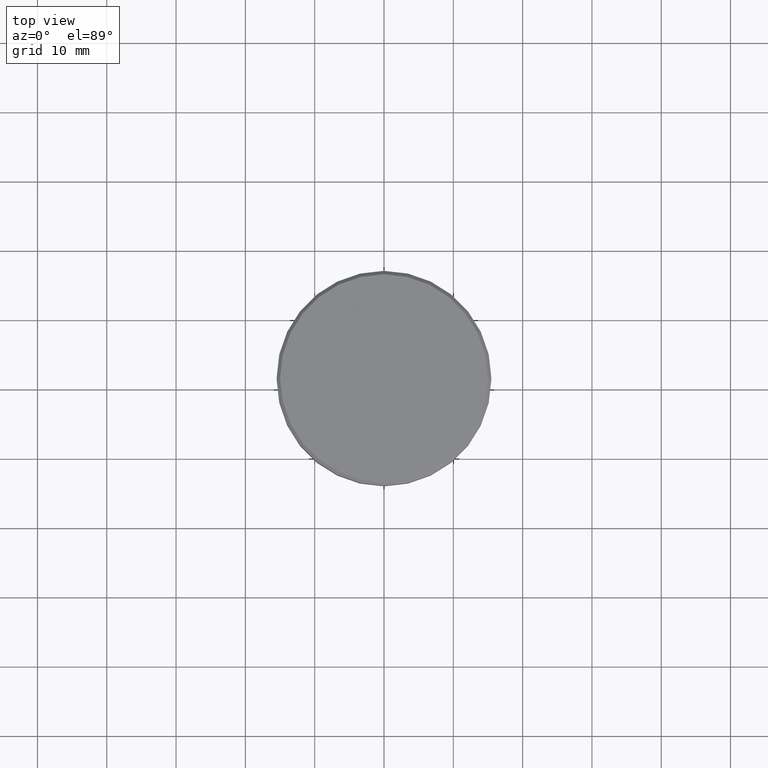
[diagram: clean part render]
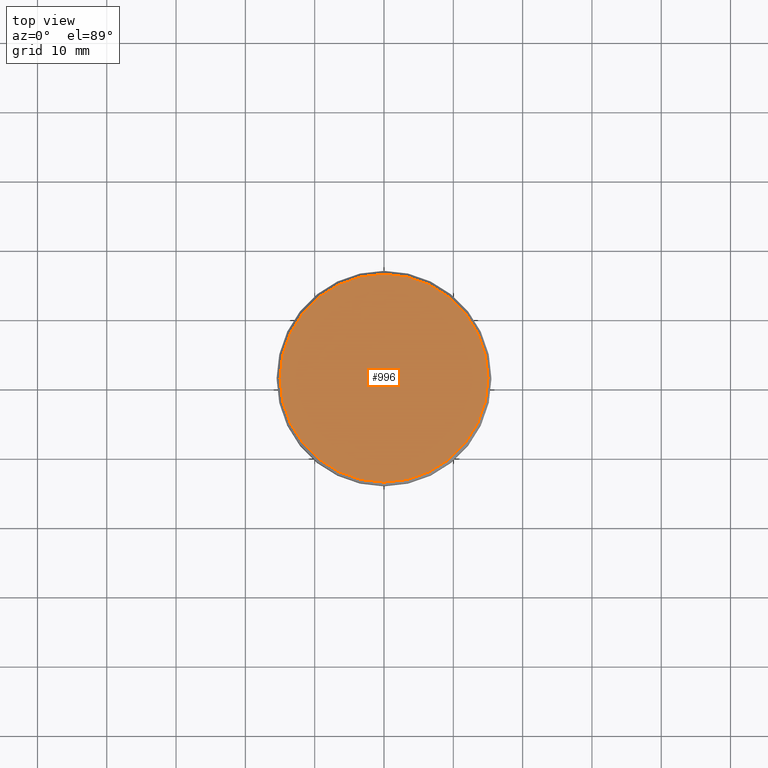
[diagram: same view with one face highlighted and labeled with its STEP entity id]
A machine part, top view. The second image highlights one B-rep face of the part: STEP entity #996.
In plain terms, the highlighted planar face has unit normal (0, -0, 1).
Its self-contained STEP definition (entity closure, byte-faithful):
#7 = DIRECTION ( 'NONE',  ( 1.000000000000000000, 0.000000000000000000, 0.000000000000000000 ) ) ;
#36 = VERTEX_POINT ( 'NONE', #1031 ) ;
#45 = DIRECTION ( 'NONE',  ( -0.000000000000000000, -0.000000000000000000, 1.000000000000000000 ) ) ;
#230 = EDGE_LOOP ( 'NONE', ( #560, #409 ) ) ;
#234 = DIRECTION ( 'NONE',  ( 1.000000000000000000, 0.000000000000000000, 0.000000000000000000 ) ) ;
#239 = CARTESIAN_POINT ( 'NONE',  ( -15.00000000000001421, 0.000000000000000000, 0.000000000000000000 ) ) ;
#331 = DIRECTION ( 'NONE',  ( -0.000000000000000000, -0.000000000000000000, 1.000000000000000000 ) ) ;
#382 = PLANE ( 'NONE',  #1097 ) ;
#409 = ORIENTED_EDGE ( 'NONE', *, *, #1091, .T. ) ;
#516 = AXIS2_PLACEMENT_3D ( 'NONE', #688, #45, #234 ) ;
#537 = AXIS2_PLACEMENT_3D ( 'NONE', #792, #331, #699 ) ;
#560 = ORIENTED_EDGE ( 'NONE', *, *, #1149, .T. ) ;
#688 = CARTESIAN_POINT ( 'NONE',  ( 0.000000000000000000, 0.000000000000000000, 0.000000000000000000 ) ) ;
#699 = DIRECTION ( 'NONE',  ( 1.000000000000000000, 0.000000000000000000, 0.000000000000000000 ) ) ;
#790 = CIRCLE ( 'NONE', #537, 15.00000000000001421 ) ;
#792 = CARTESIAN_POINT ( 'NONE',  ( 0.000000000000000000, 0.000000000000000000, 0.000000000000000000 ) ) ;
#848 = CARTESIAN_POINT ( 'NONE',  ( 0.000000000000000000, 0.000000000000000000, 0.000000000000000000 ) ) ;
#903 = CIRCLE ( 'NONE', #516, 15.00000000000001421 ) ;
#996 = ADVANCED_FACE ( 'NONE', ( #1112 ), #382, .T. ) ;
#1031 = CARTESIAN_POINT ( 'NONE',  ( 15.00000000000001421, 1.867586368699714559E-15, 0.000000000000000000 ) ) ;
#1091 = EDGE_CURVE ( 'NONE', #36, #1161, #903, .T. ) ;
#1097 = AXIS2_PLACEMENT_3D ( 'NONE', #848, #1126, #7 ) ;
#1112 = FACE_OUTER_BOUND ( 'NONE', #230, .T. ) ;
#1126 = DIRECTION ( 'NONE',  ( 0.000000000000000000, -0.000000000000000000, 1.000000000000000000 ) ) ;
#1149 = EDGE_CURVE ( 'NONE', #1161, #36, #790, .T. ) ;
#1161 = VERTEX_POINT ( 'NONE', #239 ) ;